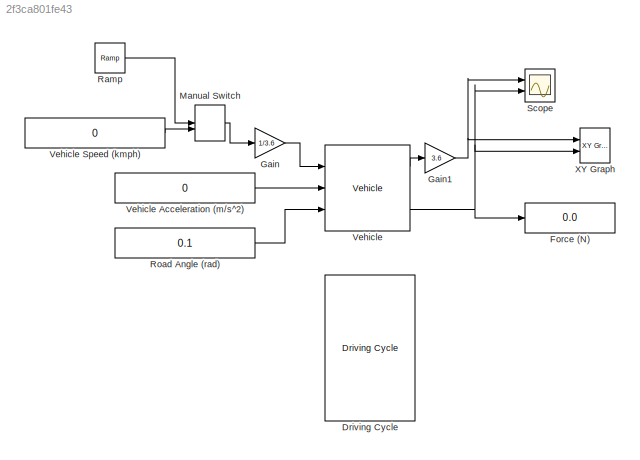
MODEL slx_2f3ca801fe43
KIND model
CONFIG AbsTol = auto
CONFIG EnableMultiTasking = off
CONFIG FixedStep = auto
CONFIG MaxStep = auto
CONFIG MinStep = auto
CONFIG RelTol = 1e-3
CONFIG SampleTimeConstraint = Unconstrained
CONFIG Solver = VariableStepAuto
CONFIG SolverName = VariableStepAuto
CONFIG StartTime = 0.0
CONFIG StopTime = 1220
BLOCK [Reference] Driving Cycle  REF=qss_tb_library/Driving Cycle/Driving Cycle  (lib defined in mdl_a75e96b0ff2a, mdl_aad2a3137e65)
  Ports = [0, 5]
  SourceBlock = qss_tb_library/Driving Cycle/Driving Cycle
  SourceType = Driving Cycle
  Tag = cycle
BLOCK [Display] Force (N)
  Decimation = 1
  Ports = [1]
BLOCK [Gain] Gain
  Gain = 1/3.6
  OutDataTypeStr = Inherit: Inherit via internal rule
  ParamDataTypeStr = Inherit: Inherit via internal rule
  SaturateOnIntegerOverflow = off
BLOCK [Gain] Gain1
  Gain = 3.6
  OutDataTypeStr = Inherit: Inherit via internal rule
  ParamDataTypeStr = Inherit: Inherit via internal rule
  SaturateOnIntegerOverflow = off
BLOCK [ManualSwitch] Manual Switch
BLOCK [Reference] Ramp  REF=simulink/Sources/Ramp
  Ports = [0, 1]
  SourceBlock = simulink/Sources/Ramp
  SourceProductBaseCode = SL
  SourceProductName = Simulink
  SourceType = Ramp
BLOCK [Constant] Road Angle (rad)
  Value = 0.1
BLOCK [Scope] Scope
  Floating = off
  NumInputPorts = 2
  Ports = [2]
  ScopeSpecificationString = Simulink.scopes.TimeScopeBlockCfg('CurrentConfiguration', extmgr.ConfigurationSet(extmgr.Configuration('Core','General UI',true),extmgr.Configuration('Core','Source UI',true),extmgr.Configuration('Sources','WiredSimulink',true),extmgr.Configuration('Visuals','Time Domain',true,'SerializedDisplays',{struct('MinYLimReal','-7.125','MaxYLimReal','64.125','YLabelReal','','MinYLimMag','0.00000','MaxYLim...<+2015ch>
BLOCK [Reference] Vehicle  REF=qss_tb_library/Vehicle/Vehicle  (lib defined in mdl_a75e96b0ff2a, mdl_aad2a3137e65)
  Ports = [3, 3]
  SourceBlock = qss_tb_library/Vehicle/Vehicle
  SourceType = Vehicle
  Tag = vehicle
BLOCK [Constant] Vehicle Acceleration (m//s^2)
  Value = 0
BLOCK [Constant] Vehicle Speed (kmph)
  Value = 0
BLOCK [Reference] XY Graph  REF=simulink/Sinks/XY Graph
  Ports = [2]
  SourceBlock = simulink/Sinks/XY Graph
  SourceProductBaseCode = SL
  SourceProductName = Simulink
  SourceType = XY scope.
NET Gain1:1 -> Scope:1, XY Graph:1
LINE Gain:1 -> Vehicle:1
LINE Manual Switch:1 -> Gain:1
LINE Ramp:1 -> Manual Switch:1
LINE Road Angle (rad):1 -> Vehicle:3
LINE Vehicle Acceleration (m//s^2):1 -> Vehicle:2
LINE Vehicle Speed (kmph):1 -> Manual Switch:2
LINE Vehicle:1 -> Gain1:1
NET Vehicle:3 -> Force (N):1, Scope:2, XY Graph:2
note: NET lines group one-source signal fan-out (src -> all destinations, sorted); 1:1 wires keep LINE
